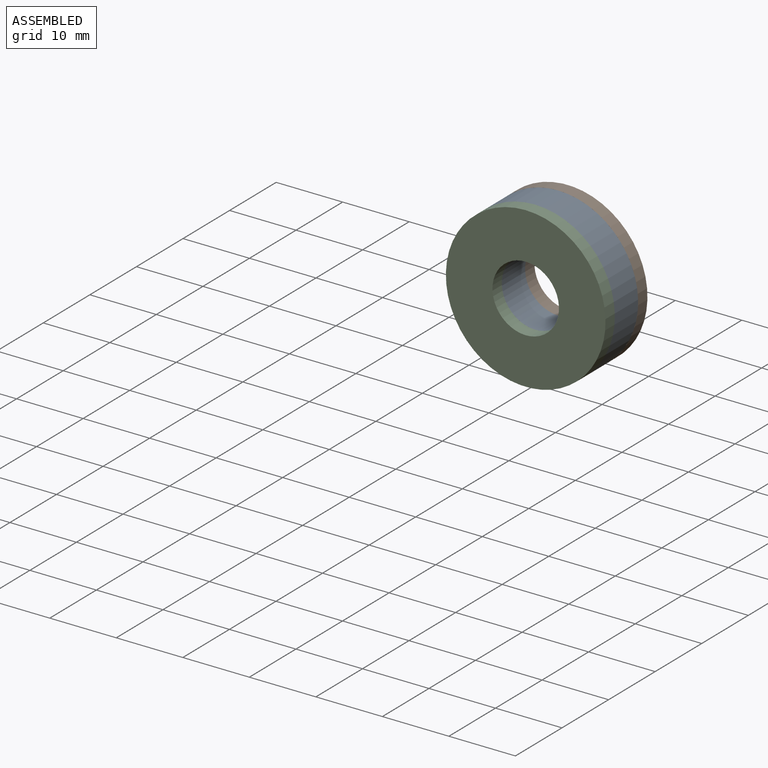
[diagram: assembled view]
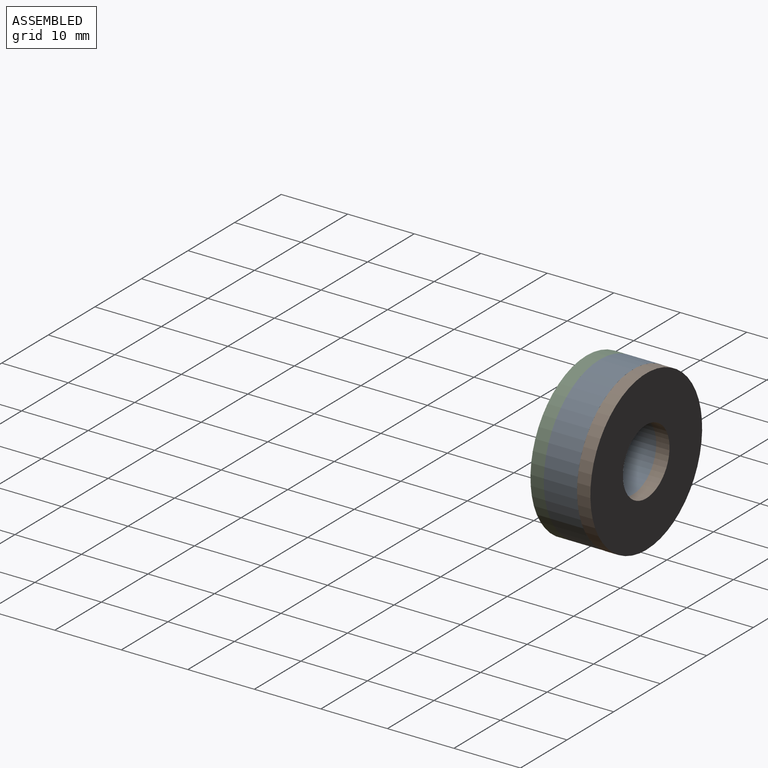
[diagram: assembled view, second angle]
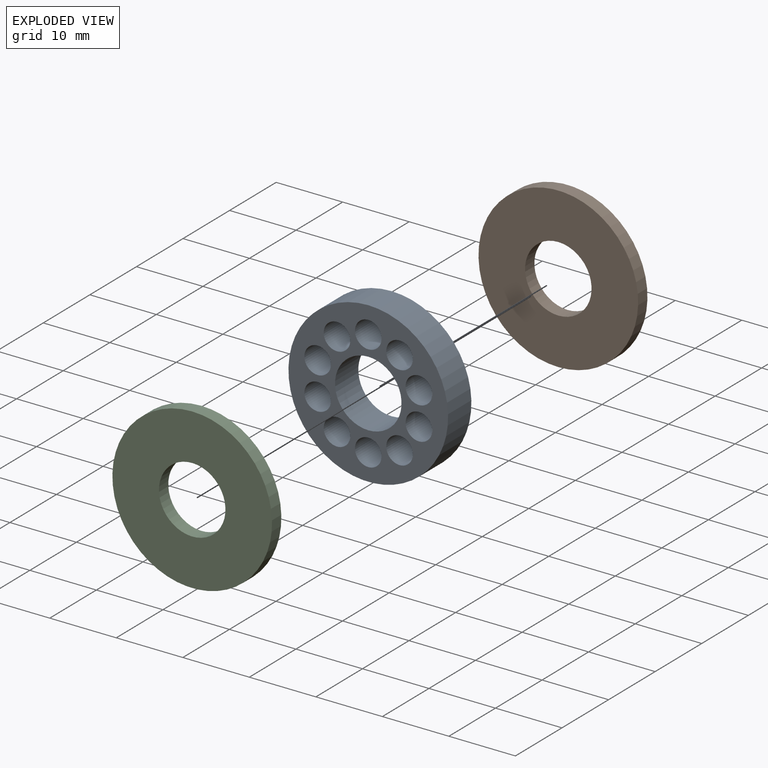
[diagram: exploded view]
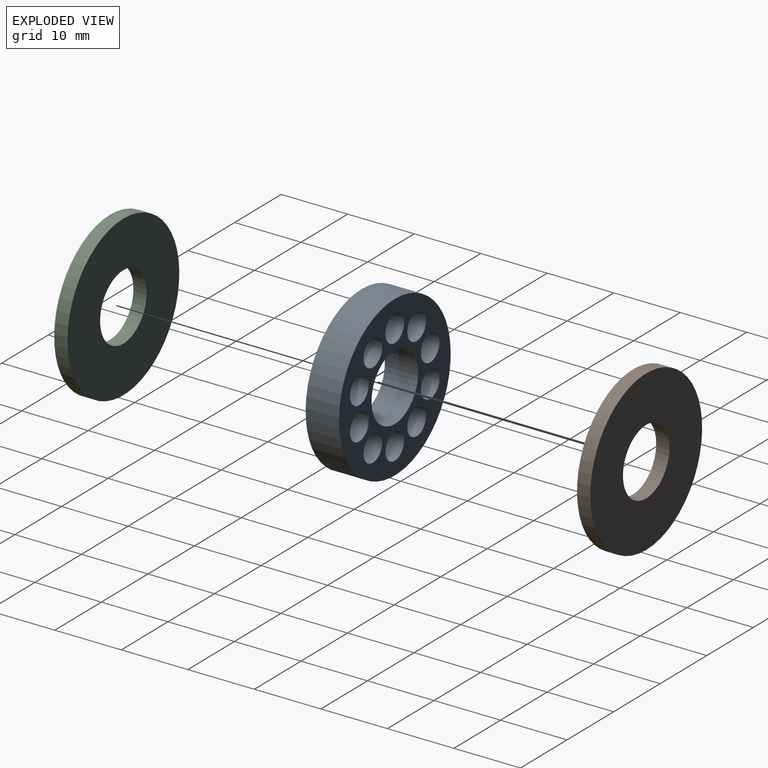
[diagram: exploded view, second angle]
ASSEMBLY  parts=3 mates=2
PART A: 14 faces, bbox 24x5x24 mm
  f0: cylinder r=5mm len=10mm, axis (0,1,0), area 157.1mm2, adj f2,f3
  f1: cylinder r=12mm len=24mm, axis (0,1,0), area 377mm2, adj f2,f3
  f2: plane 24x24mm, normal (0,-1,0), area 248.2mm2, adj f0,f1,f4,f5,f6,f7,f8,f9
  f3: plane 24x24mm, normal (0,1,0), area 248.2mm2, adj f0,f1,f4,f5,f6,f7,f8,f9
  f4: cylinder r=2mm len=5mm, axis (0,-1,0), area 62.8mm2, adj f2,f3
  f5: cylinder r=2mm len=5mm, axis (0,-1,0), area 62.8mm2, adj f2,f3
  f6: cylinder r=2mm len=5mm, axis (0,-1,0), area 62.8mm2, adj f2,f3
  f7: cylinder r=2mm len=5mm, axis (0,-1,0), area 62.8mm2, adj f2,f3
  f8: cylinder r=2mm len=5mm, axis (0,-1,0), area 62.8mm2, adj f2,f3
  f9: cylinder r=2mm len=5mm, axis (0,-1,0), area 62.8mm2, adj f2,f3
  f10: cylinder r=2mm len=5mm, axis (0,-1,0), area 62.8mm2, adj f2,f3
  f11: cylinder r=2mm len=5mm, axis (0,-1,0), area 62.8mm2, adj f2,f3
  f12: cylinder r=2mm len=5mm, axis (0,-1,0), area 62.8mm2, adj f2,f3
  f13: cylinder r=2mm len=5mm, axis (0,-1,0), area 62.8mm2, adj f2,f3
PART B: 4 faces, bbox 24x2x24 mm
  f0: cylinder r=5mm len=10mm, axis (0,1,0), area 62.8mm2, adj f2,f3
  f1: cylinder r=12mm len=24mm, axis (0,1,0), area 150.8mm2, adj f2,f3
  f2: plane 24x24mm, normal (0,-1,0), area 373.8mm2, adj f0,f1
  f3: plane 24x24mm, normal (0,1,0), area 373.8mm2, adj f0,f1
PART C: same geometry as B
PLACE A rot(axis=(1,0,0),180deg) t=(0,-0.1,0)mm
PLACE B t=(0,6.9,0)mm
PLACE C rot(axis=(0.29,0,-0.96),180deg) t=(0,-2.1,0)mm
MATE revolute A.f0 <-> B.f0  axis (0,-1,0) through (0,4.9,0)mm
MATE revolute A.f0 <-> C.f0  axis (0,-1,0) through (0,-0.1,0)mm
